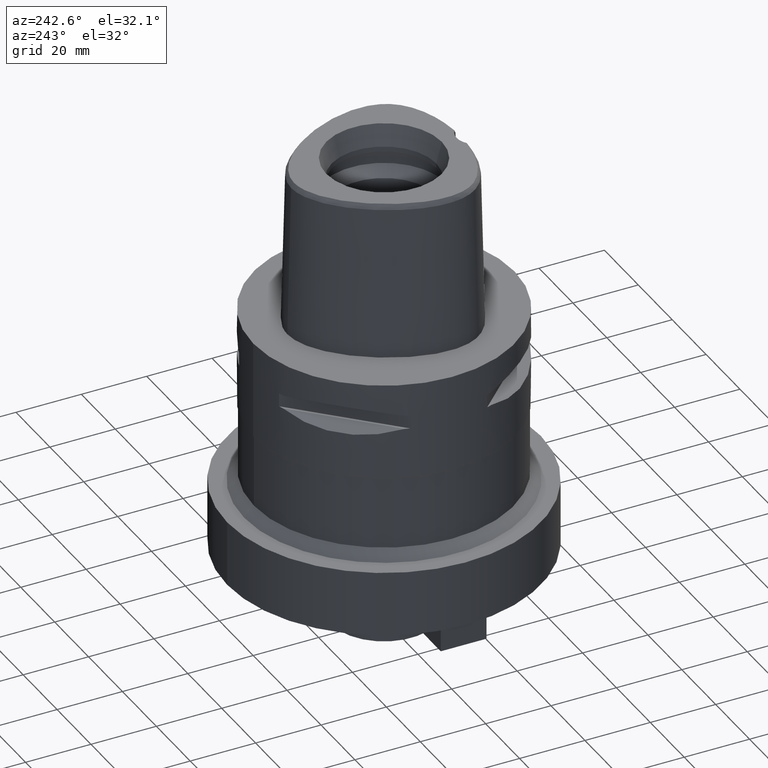
[diagram: clean part render]
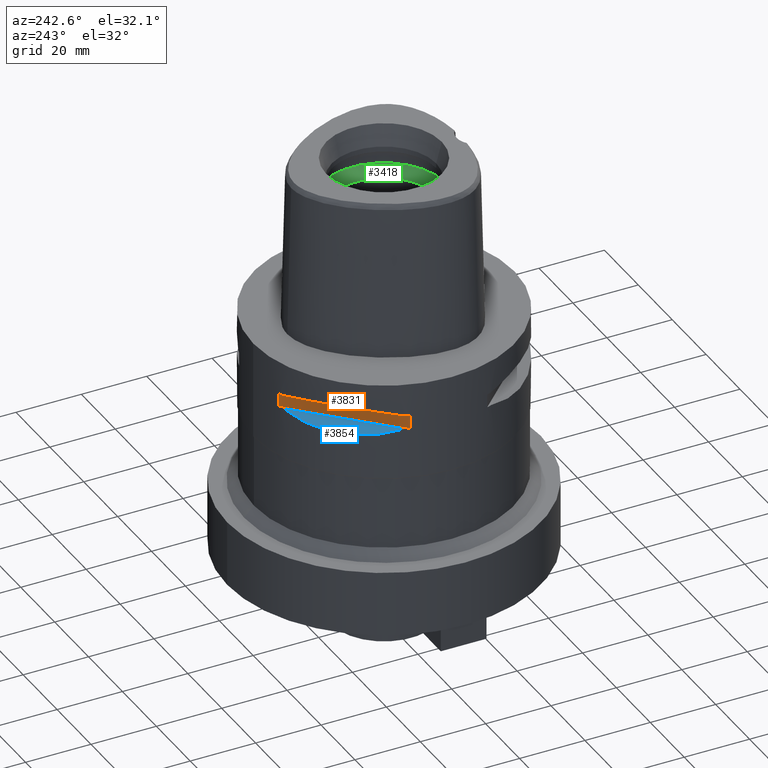
[diagram: same view with three faces highlighted in distinct colors, each labeled with its STEP entity id]
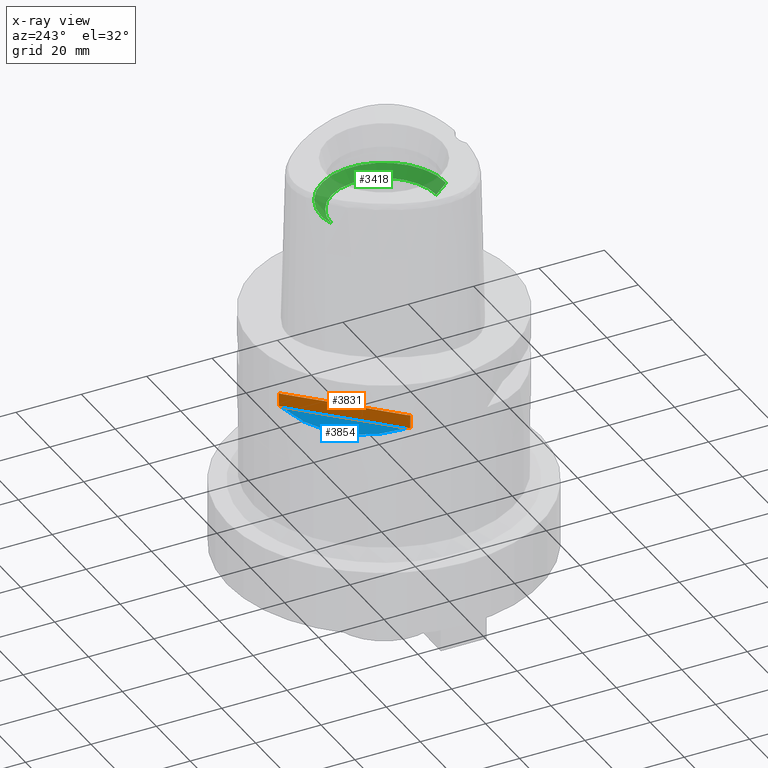
[diagram: x-ray of the same camera — body ghosted, the three highlighted faces saturated]
A machine part, auxiliary view with three faces highlighted in distinct colors.
The next image is the same camera in x-ray (body ghosted, the three faces saturated) — at least one of them is partly hidden behind the body in this view.
Their STEP definitions:

[orange] entity #3831 — the highlighted planar face has unit normal (0.7071, -0.7071, 0).
#397=DIRECTION('',(0.E0,0.E0,-1.E0));
#398=VECTOR('',#397,4.1E0);
#399=CARTESIAN_POINT('',(-1.176033600281E1,3.823211342708E1,-9.95E0));
#400=LINE('',#399,#398);
#415=DIRECTION('',(0.E0,0.E0,1.E0));
#416=VECTOR('',#415,4.1E0);
#417=CARTESIAN_POINT('',(-3.823211342708E1,1.176033600281E1,-1.405E1));
#418=LINE('',#417,#416);
#1610=DIRECTION('',(-7.071067811865E-1,-7.071067811865E-1,0.E0));
#1611=VECTOR('',#1610,3.743674665352E1);
#1612=CARTESIAN_POINT('',(-1.176033600281E1,3.823211342708E1,-9.95E0));
#1613=LINE('',#1612,#1611);
#1633=DIRECTION('',(-7.071067811865E-1,-7.071067811865E-1,0.E0));
#1634=VECTOR('',#1633,3.743674665352E1);
#1635=CARTESIAN_POINT('',(-1.176033600281E1,3.823211342708E1,-1.405E1));
#1636=LINE('',#1635,#1634);
#1750=CARTESIAN_POINT('',(-1.176033600281E1,3.823211342708E1,-9.95E0));
#1751=VERTEX_POINT('',#1750);
#1752=CARTESIAN_POINT('',(-1.176033600281E1,3.823211342708E1,-1.405E1));
#1753=VERTEX_POINT('',#1752);
#1757=CARTESIAN_POINT('',(-3.823211342708E1,1.176033600281E1,-1.405E1));
#1758=VERTEX_POINT('',#1757);
#1759=CARTESIAN_POINT('',(-3.823211342708E1,1.176033600281E1,-9.95E0));
#1760=VERTEX_POINT('',#1759);
#3819=CARTESIAN_POINT('',(-4.267389424461E1,7.318555185281E0,-9.95E0));
#3820=DIRECTION('',(7.071067811865E-1,-7.071067811865E-1,0.E0));
#3821=DIRECTION('',(0.E0,0.E0,-1.E0));
#3822=AXIS2_PLACEMENT_3D('',#3819,#3820,#3821);
#3823=PLANE('',#3822);
#3824=ORIENTED_EDGE('',*,*,#2704,.F.);
#3826=ORIENTED_EDGE('',*,*,#3825,.F.);
#3827=ORIENTED_EDGE('',*,*,#2696,.F.);
#3828=ORIENTED_EDGE('',*,*,#3812,.T.);
#3829=EDGE_LOOP('',(#3824,#3826,#3827,#3828));
#3830=FACE_OUTER_BOUND('',#3829,.F.);
#2696=EDGE_CURVE('',#1751,#1753,#400,.T.);
#2704=EDGE_CURVE('',#1758,#1760,#418,.T.);
#3812=EDGE_CURVE('',#1751,#1760,#1613,.T.);
#3825=EDGE_CURVE('',#1753,#1758,#1636,.T.);
#3831=ADVANCED_FACE('',(#3830),#3823,.F.);

[blue] entity #3854 — the highlighted planar face has unit normal (0.3536, -0.3536, -0.866).
#404=CARTESIAN_POINT('',(-1.323717311056E1,3.774622163927E1,-1.405E1));
#405=CARTESIAN_POINT('',(-1.626143876435E1,3.668564587161E1,-1.485167303901E1));
#406=CARTESIAN_POINT('',(-2.171906657626E1,3.397359084062E1,-1.597254843317E1));
#407=CARTESIAN_POINT('',(-2.850324251697E1,2.850324251697E1,-1.650891631180E1));
#408=CARTESIAN_POINT('',(-3.397359084062E1,2.171906657626E1,-1.597254843317E1));
#409=CARTESIAN_POINT('',(-3.668564587161E1,1.626143876435E1,-1.485167303901E1));
#410=CARTESIAN_POINT('',(-3.774622163927E1,1.323717311056E1,-1.405E1));
#1640=DIRECTION('',(-7.071067811865E-1,-7.071067811865E-1,0.E0));
#1641=VECTOR('',#1640,3.466102883017E1);
#1642=CARTESIAN_POINT('',(-1.323717311056E1,3.774622163927E1,-1.405E1));
#1643=LINE('',#1642,#1641);
#1754=CARTESIAN_POINT('',(-1.323717311056E1,3.774622163927E1,-1.405E1));
#1755=VERTEX_POINT('',#1754);
#1756=VERTEX_POINT('',#410);
#3845=CARTESIAN_POINT('',(-4.316936690458E1,7.814027845252E0,-1.405E1));
#3846=DIRECTION('',(3.535533905933E-1,-3.535533905933E-1,-8.660254037844E-1));
#3847=DIRECTION('',(-6.123724356958E-1,6.123724356958E-1,-5.E-1));
#3848=AXIS2_PLACEMENT_3D('',#3845,#3846,#3847);
#3849=PLANE('',#3848);
#3850=ORIENTED_EDGE('',*,*,#2700,.F.);
#3851=ORIENTED_EDGE('',*,*,#3838,.T.);
#3852=EDGE_LOOP('',(#3850,#3851));
#3853=FACE_OUTER_BOUND('',#3852,.F.);
#411=B_SPLINE_CURVE_WITH_KNOTS('',3,(#404,#405,#406,#407,#408,#409,#410),
.UNSPECIFIED.,.F.,.F.,(4,1,1,1,4),(0.E0,2.5E-1,5.E-1,7.5E-1,1.E0),
.UNSPECIFIED.);
#2700=EDGE_CURVE('',#1755,#1756,#411,.T.);
#3838=EDGE_CURVE('',#1755,#1756,#1643,.T.);
#3854=ADVANCED_FACE('',(#3853),#3849,.F.);

[green] entity #3418 — the highlighted conical surface has half-angle 45 deg.
#1126=DIRECTION('',(0.E0,-7.071067811865E-1,7.071067811865E-1));
#1127=VECTOR('',#1126,4.242640687119E0);
#1128=CARTESIAN_POINT('',(0.E0,-1.6E1,3.15E1));
#1129=LINE('',#1128,#1127);
#1149=CARTESIAN_POINT('',(0.E0,0.E0,3.15E1));
#1150=DIRECTION('',(0.E0,0.E0,1.E0));
#1151=DIRECTION('',(0.E0,-1.E0,0.E0));
#1152=AXIS2_PLACEMENT_3D('',#1149,#1150,#1151);
#1157=DIRECTION('',(0.E0,7.071067811865E-1,7.071067811865E-1));
#1158=VECTOR('',#1157,4.242640687119E0);
#1159=CARTESIAN_POINT('',(0.E0,1.6E1,3.15E1));
#1160=LINE('',#1159,#1158);
#1164=CARTESIAN_POINT('',(0.E0,0.E0,3.45E1));
#1165=DIRECTION('',(0.E0,0.E0,-1.E0));
#1166=DIRECTION('',(0.E0,1.E0,0.E0));
#1167=AXIS2_PLACEMENT_3D('',#1164,#1165,#1166);
#1882=CARTESIAN_POINT('',(0.E0,1.6E1,3.15E1));
#1883=VERTEX_POINT('',#1882);
#1884=CARTESIAN_POINT('',(0.E0,-1.6E1,3.15E1));
#1885=VERTEX_POINT('',#1884);
#1893=CARTESIAN_POINT('',(0.E0,-1.9E1,3.45E1));
#1894=VERTEX_POINT('',#1893);
#1895=CARTESIAN_POINT('',(0.E0,1.9E1,3.45E1));
#1896=VERTEX_POINT('',#1895);
#3406=CARTESIAN_POINT('',(0.E0,0.E0,3.3E1));
#3407=DIRECTION('',(0.E0,0.E0,1.E0));
#3408=DIRECTION('',(0.E0,1.E0,0.E0));
#3409=AXIS2_PLACEMENT_3D('',#3406,#3407,#3408);
#3410=CONICAL_SURFACE('',#3409,1.75E1,4.5E1);
#3411=ORIENTED_EDGE('',*,*,#3396,.F.);
#3412=ORIENTED_EDGE('',*,*,#3171,.T.);
#3413=ORIENTED_EDGE('',*,*,#3400,.T.);
#3415=ORIENTED_EDGE('',*,*,#3414,.T.);
#3416=EDGE_LOOP('',(#3411,#3412,#3413,#3415));
#3417=FACE_OUTER_BOUND('',#3416,.F.);
#1153=CIRCLE('',#1152,1.6E1);
#1168=CIRCLE('',#1167,1.9E1);
#3171=EDGE_CURVE('',#1885,#1883,#1153,.T.);
#3396=EDGE_CURVE('',#1885,#1894,#1129,.T.);
#3400=EDGE_CURVE('',#1883,#1896,#1160,.T.);
#3414=EDGE_CURVE('',#1896,#1894,#1168,.T.);
#3418=ADVANCED_FACE('',(#3417),#3410,.F.);